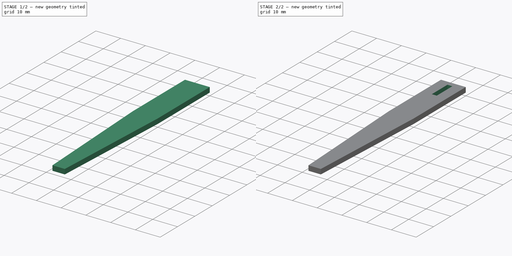
[diagram: build sequence overview — one tinted view per stage of 2, left to right]
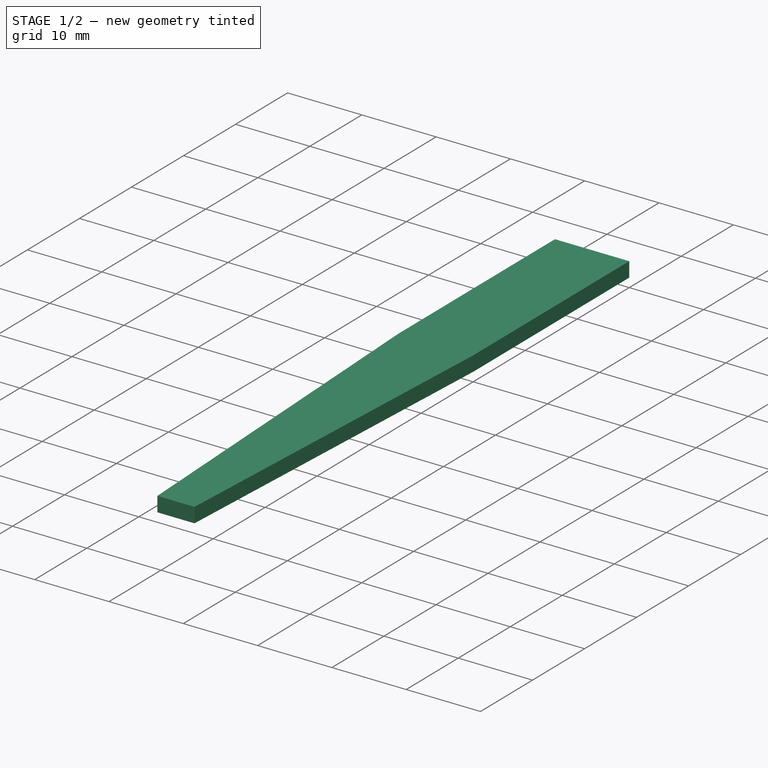
[diagram: stage 1 of 2 — iso view after this stage's code; geometry added in this stage tinted green]
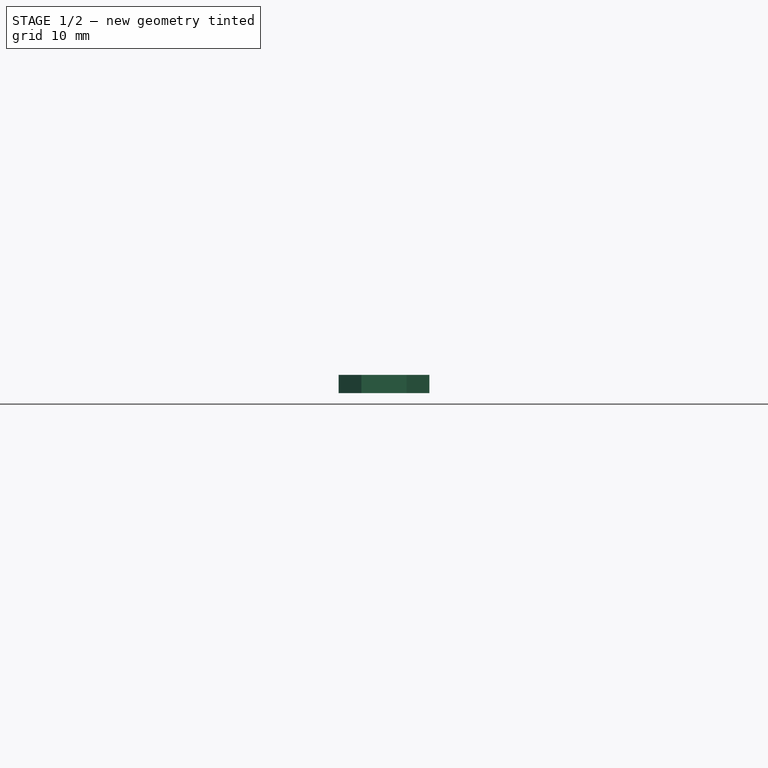
[diagram: stage 1 of 2 — front view after this stage's code; geometry added in this stage tinted green]
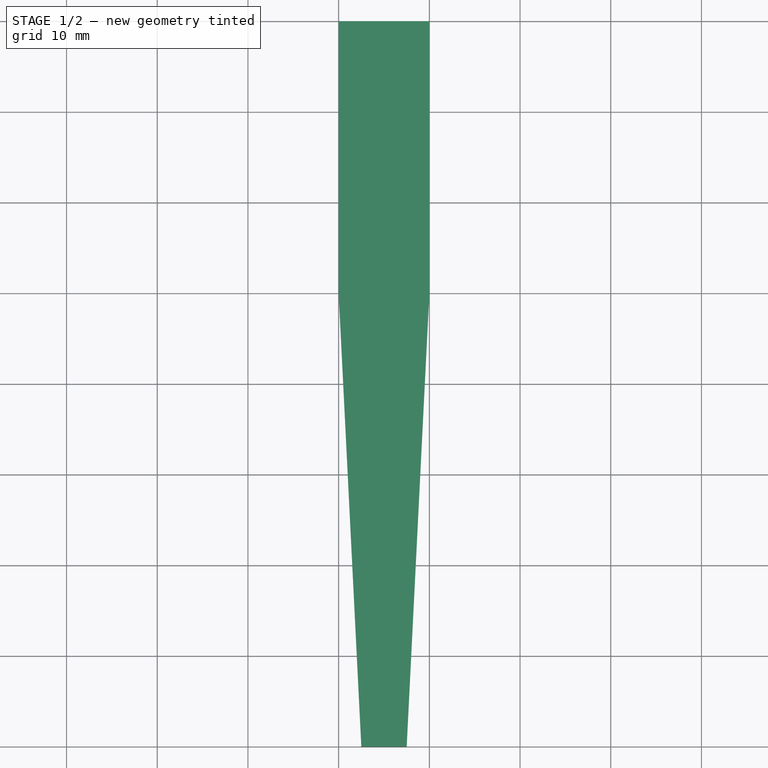
[diagram: stage 1 of 2 — top view after this stage's code; geometry added in this stage tinted green]
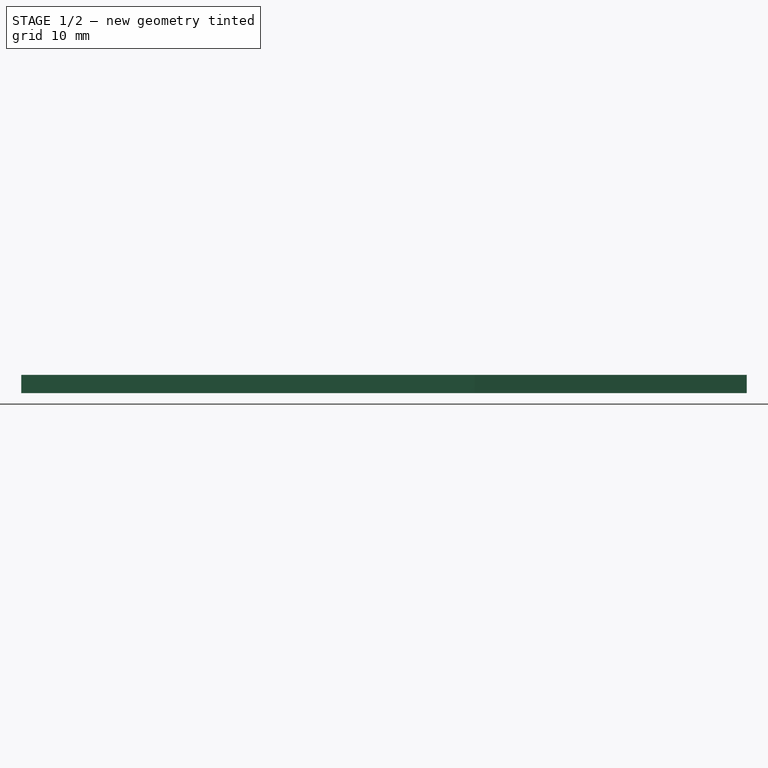
[diagram: stage 1 of 2 — right view after this stage's code; geometry added in this stage tinted green]
FCSTD DOCUMENT  (FreeCAD 0.18R16131 (Git))
Label: tibia_pied
License: All rights reserved
LicenseURL: http://en.wikipedia.org/wiki/All_rights_reserved
objects: Sketcher::SketchObject×2, PartDesign::Pad×1, PartDesign::Pocket×1, PartDesign::Body×1
note: 7 computed .brp shape members not serialized (recipe doc carries the construction recipe); baked Part::Feature solids carry a one-line shape summary decoded from their .brp

FEATURE [Sketcher::SketchObject] Sketch
  MapMode = 5
  Support = -> [XY_Plane]
  sketch-geometry (6):
    g0: LineSegment StartX=-4.94e-14 StartY=80 StartZ=0 EndX=10 EndY=80 EndZ=0
    g1: LineSegment StartX=10 StartY=80 StartZ=0 EndX=10 EndY=50 EndZ=0
    g2: LineSegment StartX=10 StartY=50 StartZ=0 EndX=7.5 EndY=0 EndZ=0
    g3: LineSegment StartX=7.5 StartY=0 StartZ=0 EndX=2.5 EndY=0 EndZ=0
    g4: LineSegment StartX=2.5 StartY=0 StartZ=0 EndX=-1.91e-14 EndY=50 EndZ=0
    g5: LineSegment StartX=-1.91e-14 StartY=50 StartZ=0 EndX=-4.94e-14 EndY=80 EndZ=0
  constraints (16):
    c: Coincident(g0,g1)
    c: Coincident(g1,g2)
    c: Coincident(g2,g3)
    c: Coincident(g3,g4)
    c: Coincident(g4,g5)
    c: Coincident(g5,g0)
    c: Tangent(g3,g-1)
    c: Tangent(g5,g-2)
    c: Vertical(g1)
    c: Horizontal(g0)
    c: Horizontal(g1,g4)
    c: DistanceX(g0,g0) = 10
    c: DistanceX(g3,g3) = 5
    c: DistanceX(g-1,g3) = 2.5
    c: DistanceY(g4,g0) = 30
    c: DistanceY(g-1,g4) = 50
FEATURE [PartDesign::Pad] Pad
  Length = 2
  Length2 = 100
  Profile = -> Sketch
  Type = 0
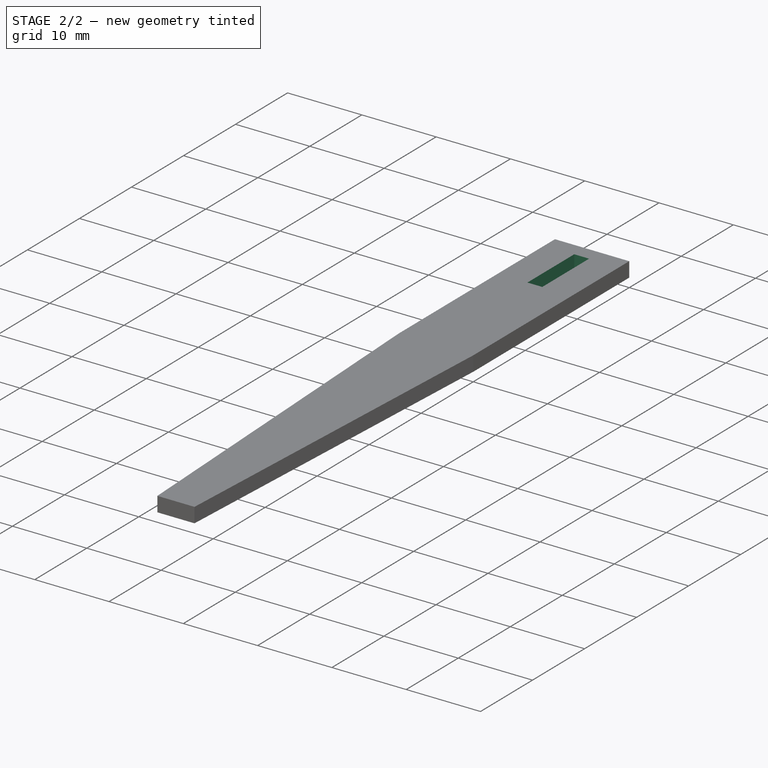
[diagram: stage 2 of 2 — iso view after this stage's code; geometry added in this stage tinted green]
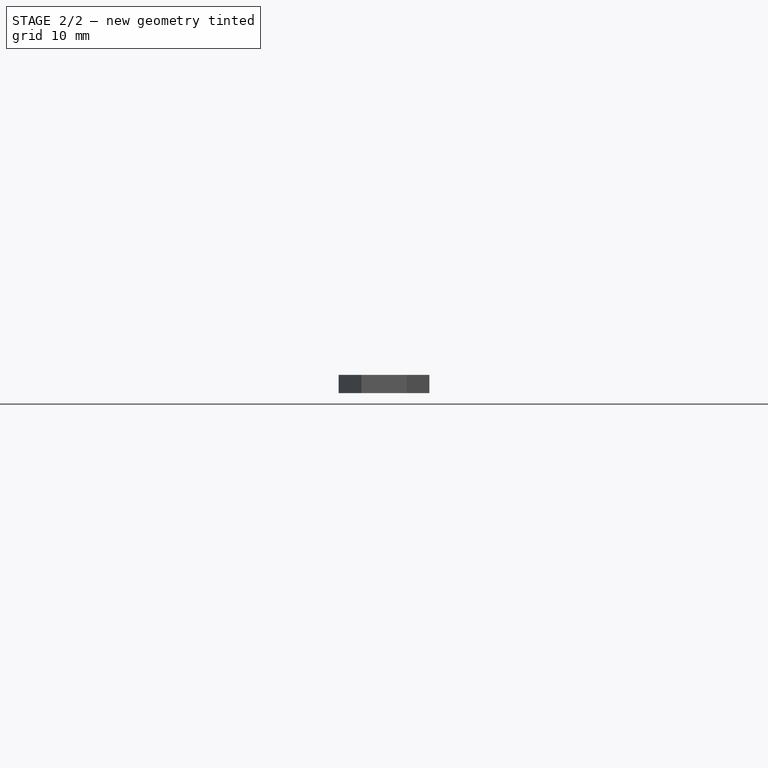
[diagram: stage 2 of 2 — front view after this stage's code; geometry added in this stage tinted green]
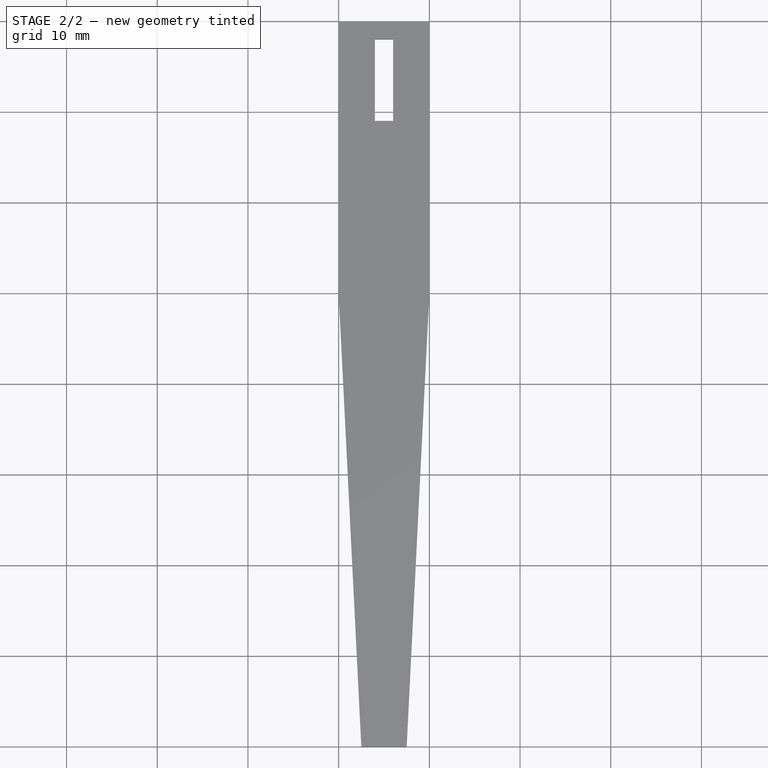
[diagram: stage 2 of 2 — top view after this stage's code; geometry added in this stage tinted green]
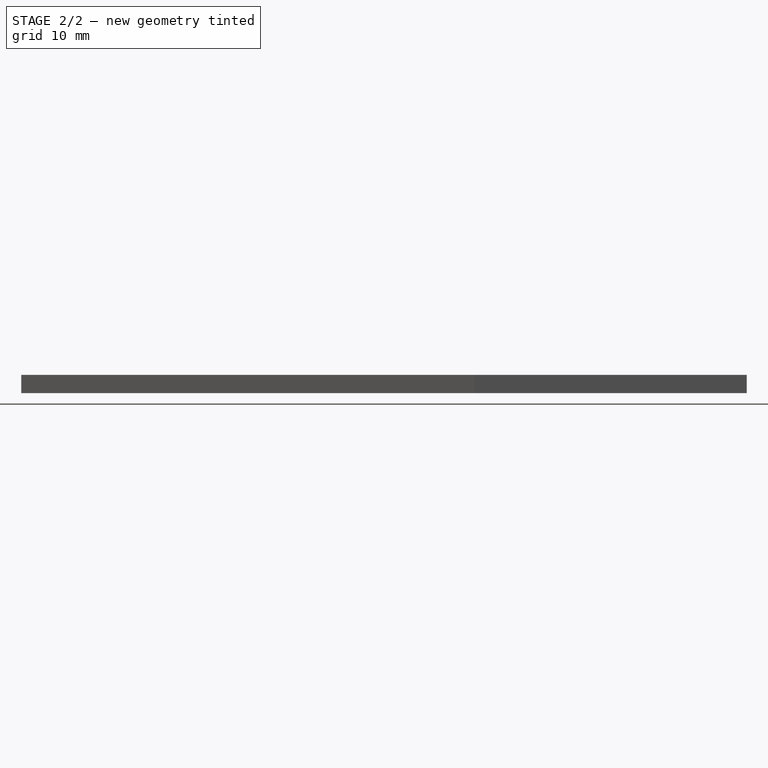
[diagram: stage 2 of 2 — right view after this stage's code; geometry added in this stage tinted green]
FEATURE [Sketcher::SketchObject] Sketch001
  MapMode = 5
  Support = -> [XY_Plane]
  sketch-geometry (4):
    g0: LineSegment StartX=4 StartY=78 StartZ=0 EndX=6 EndY=78 EndZ=0
    g1: LineSegment StartX=6 StartY=78 StartZ=0 EndX=6 EndY=69 EndZ=0
    g2: LineSegment StartX=6 StartY=69 StartZ=0 EndX=4 EndY=69 EndZ=0
    g3: LineSegment StartX=4 StartY=69 StartZ=0 EndX=4 EndY=78 EndZ=0
  constraints (12):
    c: Coincident(g0,g1)
    c: Coincident(g1,g2)
    c: Coincident(g2,g3)
    c: Coincident(g3,g0)
    c: Horizontal(g0)
    c: Horizontal(g2)
    c: Vertical(g1)
    c: Vertical(g3)
    c: DistanceY(g1,g1) = 9
    c: DistanceX(g0,g0) = 2
    c: DistanceX(g-1,g0) = 4
    c: DistanceY(g-1,g2) = 69
FEATURE [PartDesign::Pocket] Pocket
  BaseFeature = -> Pad
  Length = 5
  Length2 = 100
  Midplane = true
  Profile = -> Sketch001
  Type = 1
FEATURE [PartDesign::Body] Body
  Group = -> [Sketch,Pad,Sketch001,Pocket]
  Origin = -> Origin
  Tip = -> Pocket
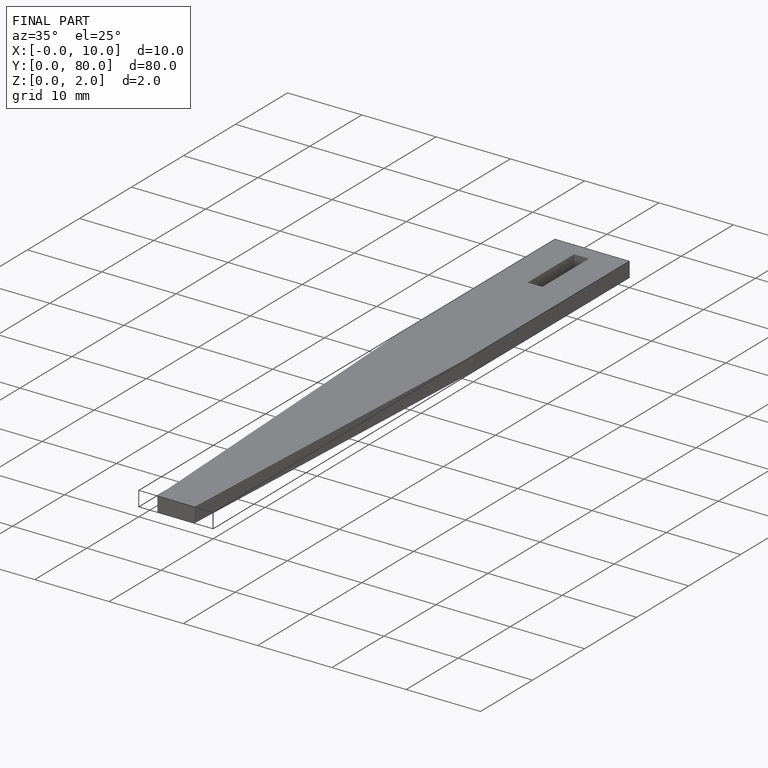
[diagram: finished part — iso view with bounding-box wireframe]
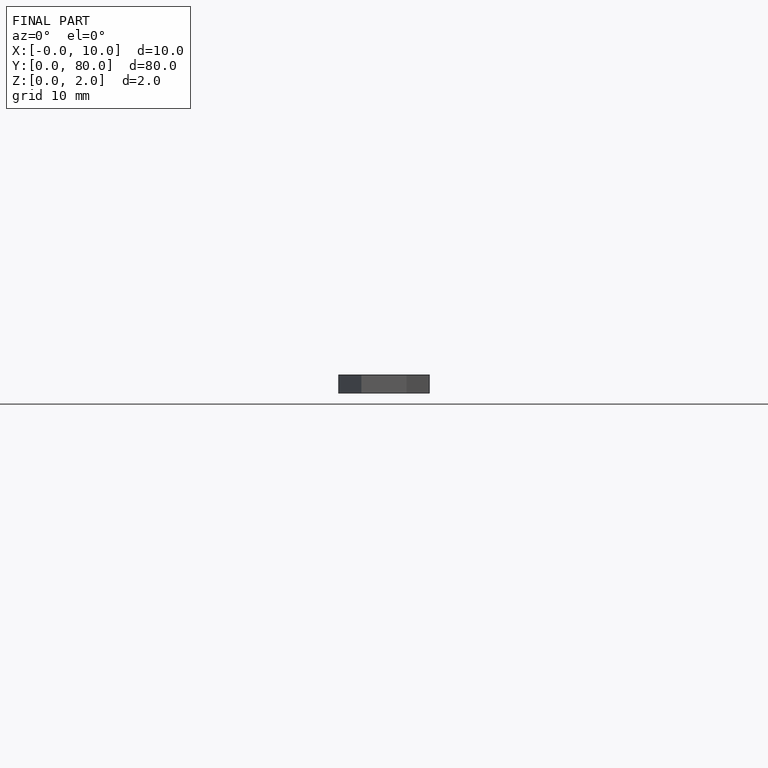
[diagram: finished part — front view with bounding-box wireframe]
